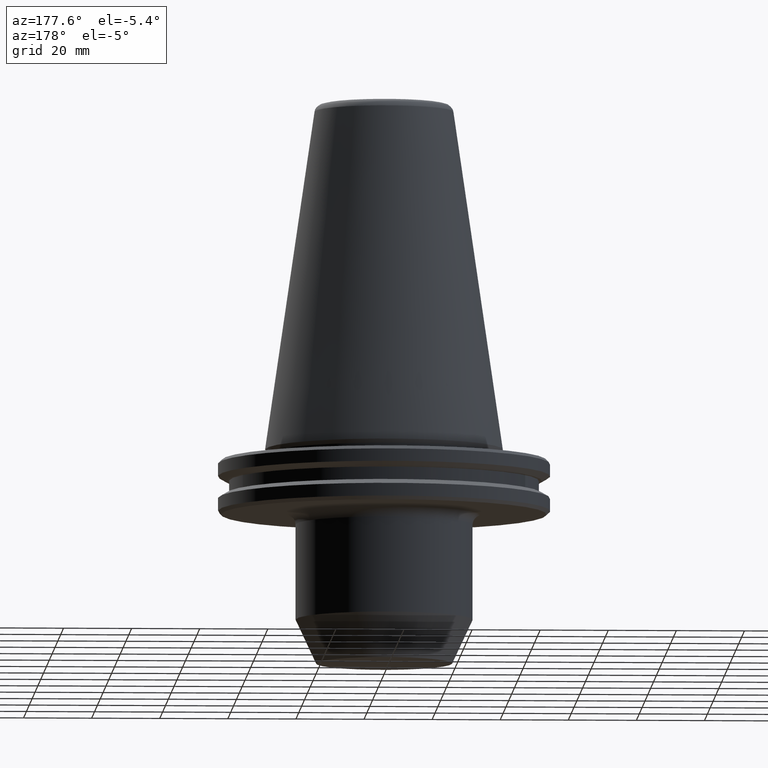
[diagram: clean part render]
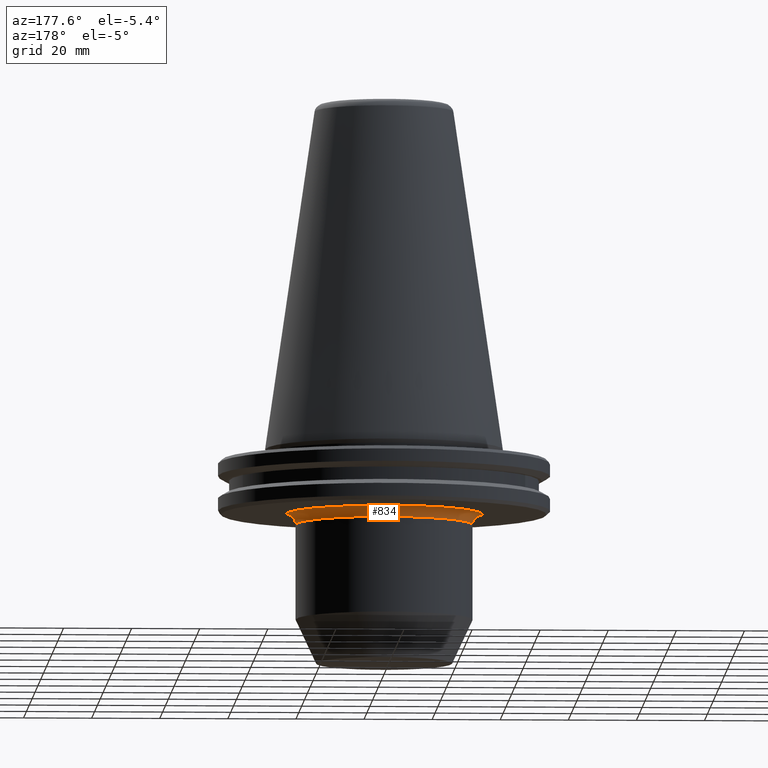
[diagram: same view with one face highlighted and labeled with its STEP entity id]
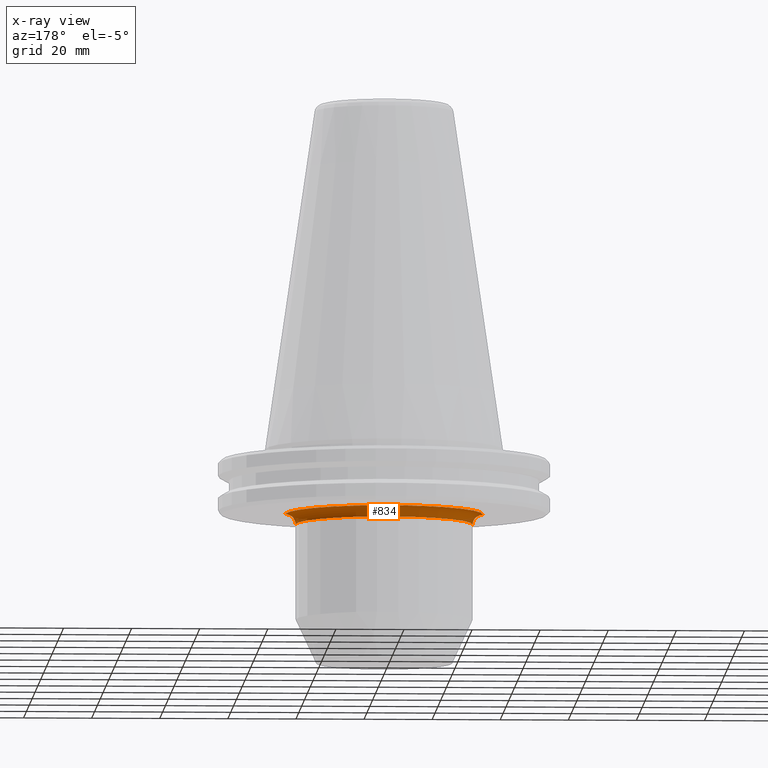
[diagram: x-ray of the same camera — body ghosted, the highlighted face saturated]
A machine part, auxiliary view. The second image highlights one B-rep face of the part: STEP entity #834.
The next image is the same camera in x-ray: the body ghosted, the highlighted face saturated — about 0% of this face is hidden behind the body in this view.
In plain terms, the highlighted toroidal blend (fillet) surface has major radius 29 mm and minor (blend) radius 3 mm.
Its self-contained STEP definition (entity closure, byte-faithful):
#17 = AXIS2_PLACEMENT_3D ( 'NONE', #175, #561, #871 ) ;
#22 = ORIENTED_EDGE ( 'NONE', *, *, #445, .T. ) ;
#26 = CARTESIAN_POINT ( 'NONE',  ( -28.99999999999999600, 3.551475717527324000E-015, -22.09999999999995200 ) ) ;
#39 = VERTEX_POINT ( 'NONE', #960 ) ;
#41 = DIRECTION ( 'NONE',  ( 0.0000000000000000000, -1.000000000000000000, 0.0000000000000000000 ) ) ;
#50 = CIRCLE ( 'NONE', #397, 26.00000000000000000 ) ;
#128 = ORIENTED_EDGE ( 'NONE', *, *, #833, .F. ) ;
#175 = CARTESIAN_POINT ( 'NONE',  ( 0.0000000000000000000, 0.0000000000000000000, -22.09999999999995200 ) ) ;
#220 = TOROIDAL_SURFACE ( 'NONE', #17, 28.99999999999999600, 3.000000000000000000 ) ;
#226 = ORIENTED_EDGE ( 'NONE', *, *, #258, .F. ) ;
#236 = CARTESIAN_POINT ( 'NONE',  ( 28.99999999999999600, 0.0000000000000000000, -19.09999999999995200 ) ) ;
#248 = CARTESIAN_POINT ( 'NONE',  ( 0.0000000000000000000, 0.0000000000000000000, -19.09999999999995200 ) ) ;
#251 = CIRCLE ( 'NONE', #804, 2.999999999999999100 ) ;
#258 = EDGE_CURVE ( 'NONE', #39, #332, #728, .T. ) ;
#316 = DIRECTION ( 'NONE',  ( 1.000000000000000000, 0.0000000000000000000, 0.0000000000000000000 ) ) ;
#323 = DIRECTION ( 'NONE',  ( 1.000000000000000000, 0.0000000000000000000, 0.0000000000000000000 ) ) ;
#325 = DIRECTION ( 'NONE',  ( -1.000000000000000000, 1.224646799147352000E-016, 0.0000000000000000000 ) ) ;
#332 = VERTEX_POINT ( 'NONE', #568 ) ;
#397 = AXIS2_PLACEMENT_3D ( 'NONE', #400, #863, #316 ) ;
#400 = CARTESIAN_POINT ( 'NONE',  ( 0.0000000000000000000, 0.0000000000000000000, -22.09999999999995200 ) ) ;
#440 = AXIS2_PLACEMENT_3D ( 'NONE', #26, #460, #325 ) ;
#445 = EDGE_CURVE ( 'NONE', #794, #562, #251, .T. ) ;
#460 = DIRECTION ( 'NONE',  ( 1.224646799147353200E-016, 1.000000000000000000, 0.0000000000000000000 ) ) ;
#473 = ORIENTED_EDGE ( 'NONE', *, *, #888, .F. ) ;
#514 = CARTESIAN_POINT ( 'NONE',  ( 28.99999999999999600, 0.0000000000000000000, -22.09999999999995200 ) ) ;
#561 = DIRECTION ( 'NONE',  ( -0.0000000000000000000, -0.0000000000000000000, 1.000000000000000000 ) ) ;
#562 = VERTEX_POINT ( 'NONE', #907 ) ;
#568 = CARTESIAN_POINT ( 'NONE',  ( -26.00000000000000000, 3.184081677783118200E-015, -22.09999999999995200 ) ) ;
#594 = DIRECTION ( 'NONE',  ( 0.0000000000000000000, 0.0000000000000000000, -1.000000000000000000 ) ) ;
#641 = EDGE_LOOP ( 'NONE', ( #226, #128, #22, #473 ) ) ;
#728 = CIRCLE ( 'NONE', #440, 3.000000000000002700 ) ;
#791 = DIRECTION ( 'NONE',  ( -0.0000000000000000000, -0.0000000000000000000, 1.000000000000000000 ) ) ;
#794 = VERTEX_POINT ( 'NONE', #236 ) ;
#804 = AXIS2_PLACEMENT_3D ( 'NONE', #514, #41, #594 ) ;
#833 = EDGE_CURVE ( 'NONE', #794, #39, #954, .T. ) ;
#834 = ADVANCED_FACE ( 'NONE', ( #976 ), #220, .F. ) ;
#863 = DIRECTION ( 'NONE',  ( 0.0000000000000000000, 0.0000000000000000000, -1.000000000000000000 ) ) ;
#871 = DIRECTION ( 'NONE',  ( 1.000000000000000000, 0.0000000000000000000, 0.0000000000000000000 ) ) ;
#888 = EDGE_CURVE ( 'NONE', #332, #562, #50, .T. ) ;
#907 = CARTESIAN_POINT ( 'NONE',  ( 26.00000000000000000, 0.0000000000000000000, -22.09999999999995200 ) ) ;
#945 = AXIS2_PLACEMENT_3D ( 'NONE', #248, #791, #323 ) ;
#954 = CIRCLE ( 'NONE', #945, 28.99999999999999600 ) ;
#960 = CARTESIAN_POINT ( 'NONE',  ( -28.99999999999999600, 3.551475717527324000E-015, -19.09999999999995200 ) ) ;
#976 = FACE_OUTER_BOUND ( 'NONE', #641, .T. ) ;